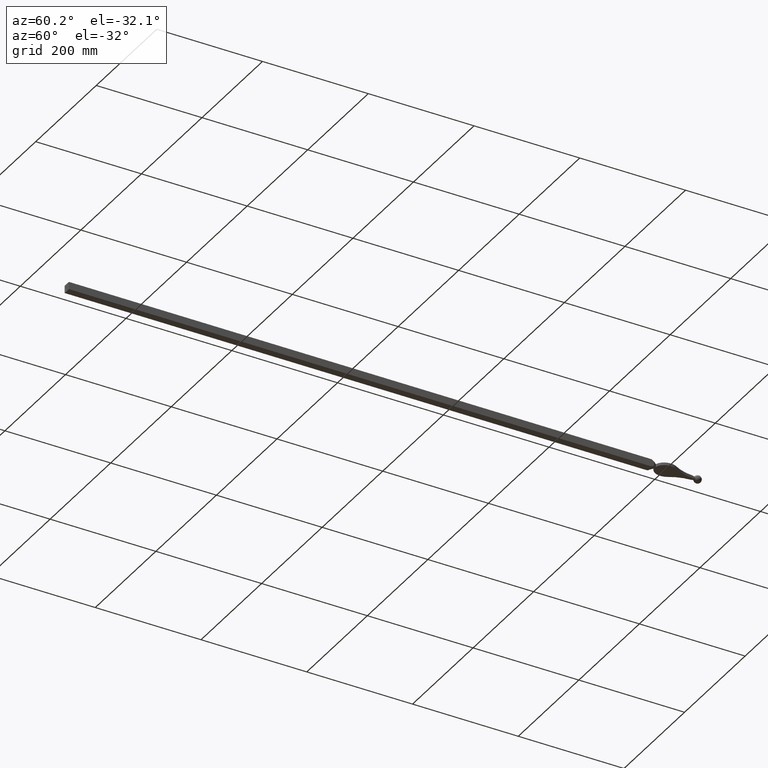
[diagram: clean part render]
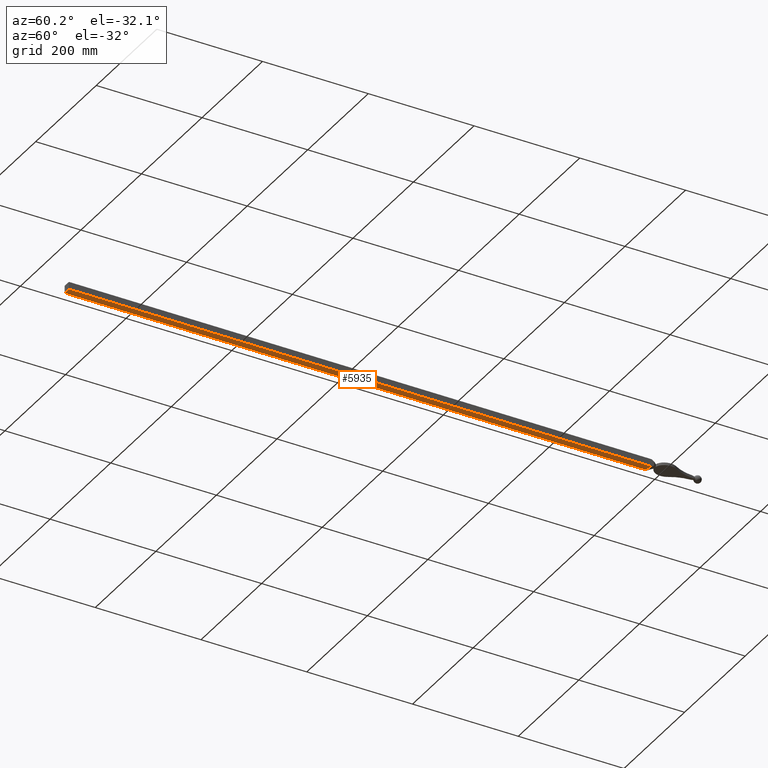
[diagram: same view with one face highlighted and labeled with its STEP entity id]
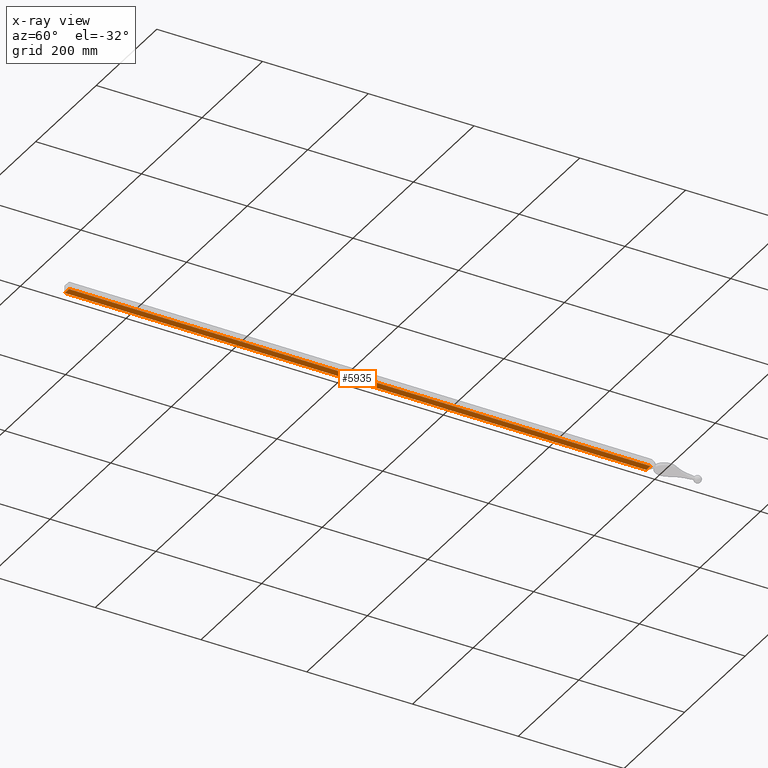
[diagram: x-ray of the same camera — body ghosted, the highlighted face saturated]
A machine part, auxiliary view. The second image highlights one B-rep face of the part: STEP entity #5935.
The next image is the same camera in x-ray: the body ghosted, the highlighted face saturated — about 0% of this face is hidden behind the body in this view.
In plain terms, the highlighted planar face has unit normal (-0, 0, 1).
Its self-contained STEP definition (entity closure, byte-faithful):
#35 = DIRECTION ( 'NONE',  ( 1.000000000000000000, -0.000000000000000000, -0.000000000000000000 ) ) ;
#638 = VERTEX_POINT ( 'NONE', #2536 ) ;
#698 = LINE ( 'NONE', #8514, #12508 ) ;
#1779 = VECTOR ( 'NONE', #10843, 1000.000000000000000 ) ;
#2536 = CARTESIAN_POINT ( 'NONE',  ( -7.000000000000002665, -11.90588089979065956, -6.999999999999999112 ) ) ;
#2715 = EDGE_CURVE ( 'NONE', #638, #3117, #11240, .T. ) ;
#2959 = ORIENTED_EDGE ( 'NONE', *, *, #4633, .T. ) ;
#3026 = PLANE ( 'NONE',  #8954 ) ;
#3117 = VERTEX_POINT ( 'NONE', #4311 ) ;
#3245 = VERTEX_POINT ( 'NONE', #8574 ) ;
#3510 = VECTOR ( 'NONE', #6212, 1000.000000000000000 ) ;
#4137 = CARTESIAN_POINT ( 'NONE',  ( 7.000000000000001776, -1112.000000000000000, -6.999999999999998224 ) ) ;
#4311 = CARTESIAN_POINT ( 'NONE',  ( 7.000000000000002665, -11.90588089979068975, -6.999999999999999112 ) ) ;
#4633 = EDGE_CURVE ( 'NONE', #3245, #638, #4744, .T. ) ;
#4744 = LINE ( 'NONE', #9004, #1779 ) ;
#5459 = ORIENTED_EDGE ( 'NONE', *, *, #2715, .T. ) ;
#5873 = VECTOR ( 'NONE', #35, 1000.000000000000000 ) ;
#5935 = ADVANCED_FACE ( 'NONE', ( #10115 ), #3026, .F. ) ;
#6212 = DIRECTION ( 'NONE',  ( -0.000000000000000000, 1.000000000000000000, -0.000000000000000000 ) ) ;
#6497 = LINE ( 'NONE', #4137, #3510 ) ;
#6814 = ORIENTED_EDGE ( 'NONE', *, *, #12435, .F. ) ;
#7615 = EDGE_LOOP ( 'NONE', ( #2959, #5459, #6814, #12890 ) ) ;
#7835 = VERTEX_POINT ( 'NONE', #11636 ) ;
#8462 = DIRECTION ( 'NONE',  ( 1.000000000000000000, 0.000000000000000000, 0.000000000000000000 ) ) ;
#8514 = CARTESIAN_POINT ( 'NONE',  ( -7.000000000000001776, -1112.000000000000000, -6.999999999999998224 ) ) ;
#8574 = CARTESIAN_POINT ( 'NONE',  ( -7.000000000000001776, -1112.000000000000000, -6.999999999999998224 ) ) ;
#8954 = AXIS2_PLACEMENT_3D ( 'NONE', #9135, #12019, #10075 ) ;
#9004 = CARTESIAN_POINT ( 'NONE',  ( -7.000000000000001776, -1112.000000000000000, -6.999999999999998224 ) ) ;
#9135 = CARTESIAN_POINT ( 'NONE',  ( -7.000000000000001776, -1112.000000000000000, -6.999999999999998224 ) ) ;
#9692 = EDGE_CURVE ( 'NONE', #3245, #7835, #698, .T. ) ;
#10075 = DIRECTION ( 'NONE',  ( 1.000000000000000000, 0.000000000000000000, 0.000000000000000000 ) ) ;
#10115 = FACE_OUTER_BOUND ( 'NONE', #7615, .T. ) ;
#10169 = CARTESIAN_POINT ( 'NONE',  ( -17.50002500000000083, -11.90588089979065956, -6.999999999999999112 ) ) ;
#10843 = DIRECTION ( 'NONE',  ( -0.000000000000000000, 1.000000000000000000, -0.000000000000000000 ) ) ;
#11240 = LINE ( 'NONE', #10169, #5873 ) ;
#11636 = CARTESIAN_POINT ( 'NONE',  ( 7.000000000000001776, -1112.000000000000000, -6.999999999999998224 ) ) ;
#12019 = DIRECTION ( 'NONE',  ( -0.000000000000000000, 0.000000000000000000, 1.000000000000000000 ) ) ;
#12435 = EDGE_CURVE ( 'NONE', #7835, #3117, #6497, .T. ) ;
#12508 = VECTOR ( 'NONE', #8462, 1000.000000000000000 ) ;
#12890 = ORIENTED_EDGE ( 'NONE', *, *, #9692, .F. ) ;